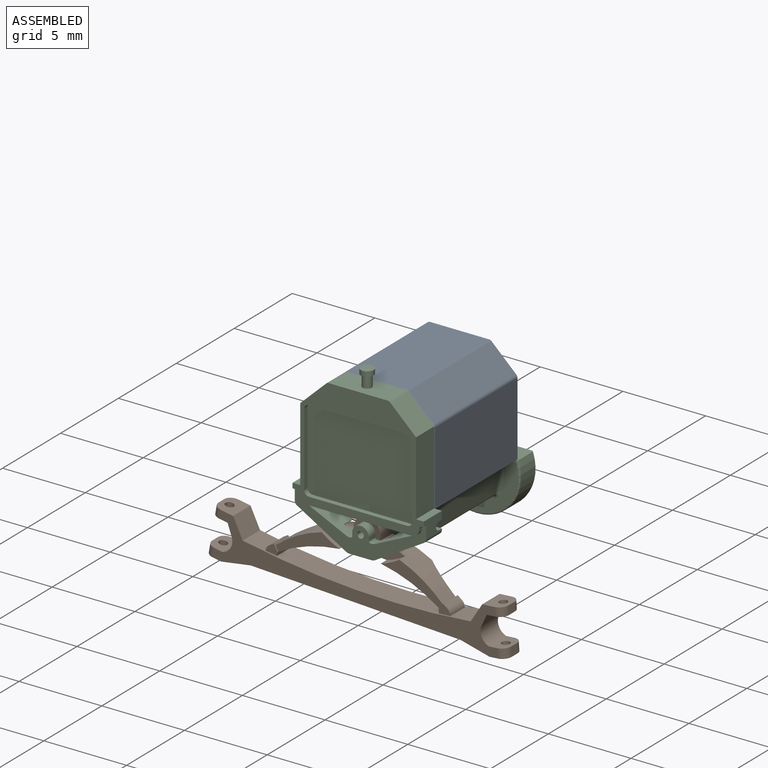
[diagram: assembled view]
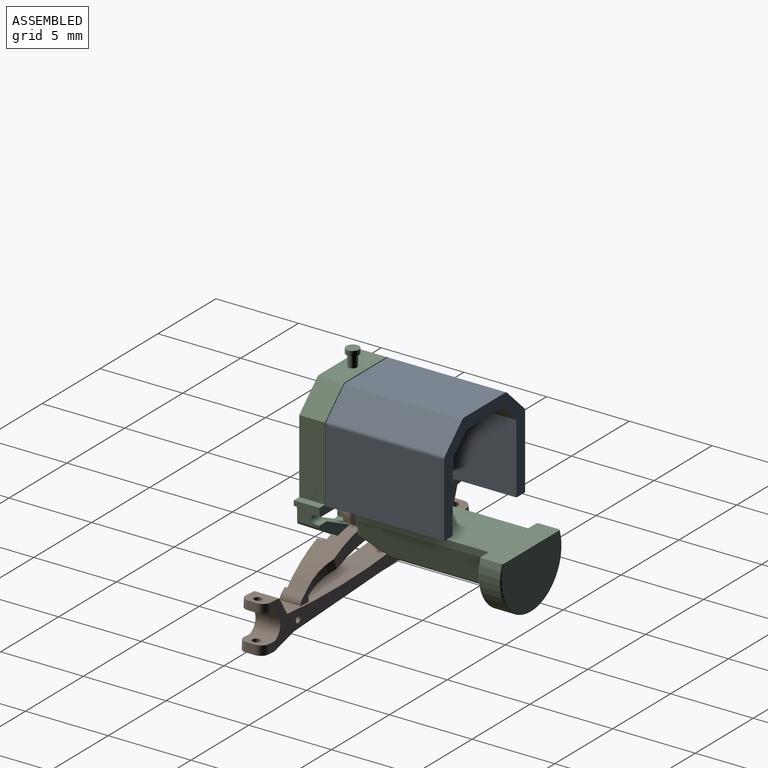
[diagram: assembled view, second angle]
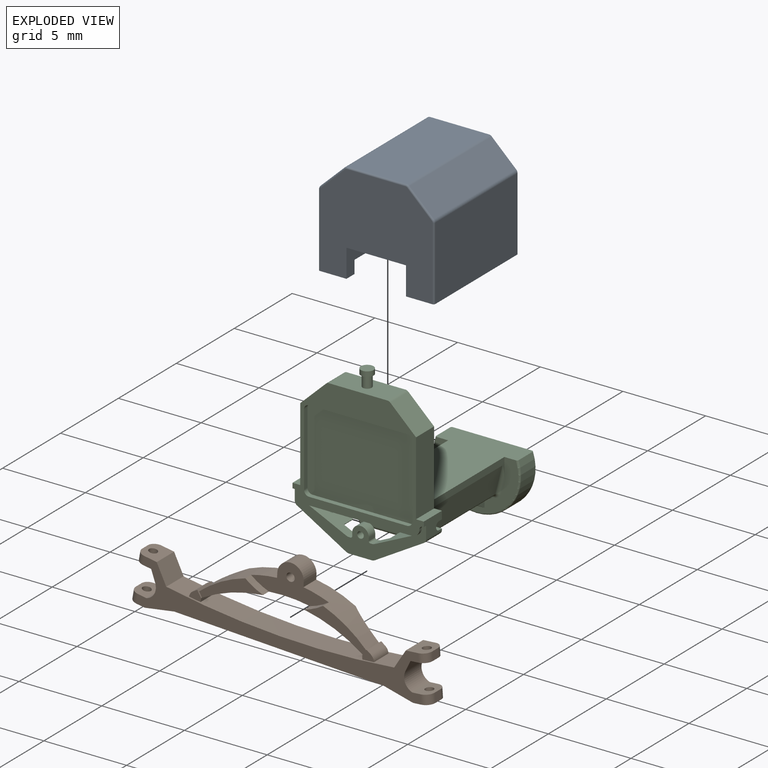
[diagram: exploded view]
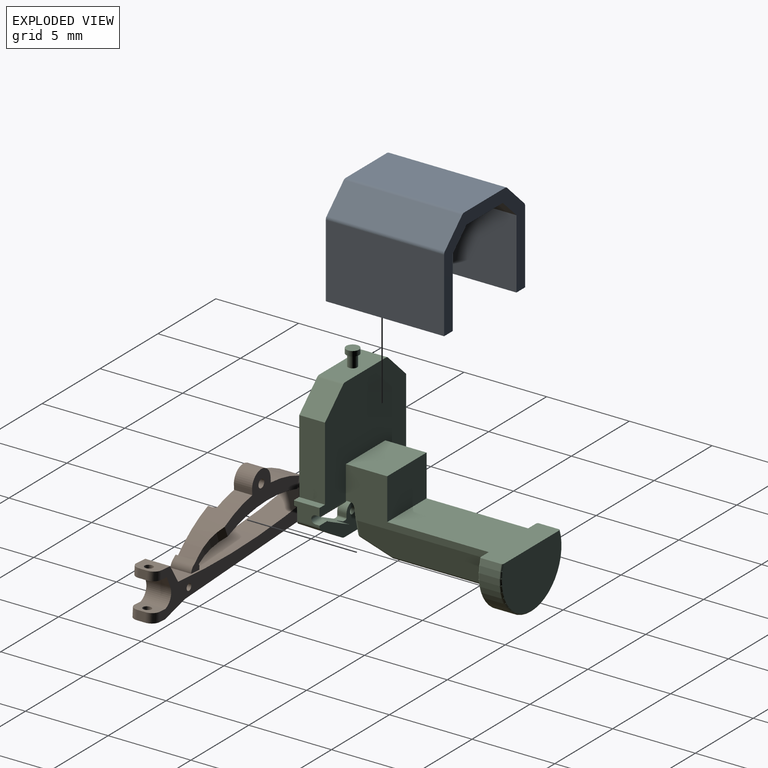
[diagram: exploded view, second angle]
ASSEMBLY  parts=3 mates=4
PART A: 31 faces, bbox 7x7.2x6.1 mm
  f0: plane 7.1x4.44mm, normal (-1,0,0), area 31.5mm2, adj f2,f17,f21,f22
  f1: plane 7.1x4.44mm, normal (1,0,0), area 31.5mm2, adj f2,f16,f18,f30
  f2: plane 7x6.1mm, normal (0,1,0), area 12.1mm2, adj f0,f1,f7,f8,f10,f11,f12,f13
  f3: plane 1.7x0.7mm, normal (1,0,0), area 1.2mm2, adj f5,f6,f9,f17
  f4: plane 1.7x0.7mm, normal (-1,0,0), area 1.2mm2, adj f5,f6,f9,f16
  f5: plane 6.8x6mm, normal (0,-1,0), area 32.3mm2, adj f3,f4,f9,f16,f17,f22,f23,f24
  f6: plane 5.5x5.35mm, normal (0,1,0), area 22mm2, adj f3,f4,f7,f8,f9,f13,f14,f15
  f7: plane 6.5x4.23mm, normal (1,0,0), area 27.5mm2, adj f2,f6,f13,f17
  f8: plane 6.5x4.23mm, normal (-1,0,0), area 27.5mm2, adj f2,f6,f15,f16
  f9: plane 3.6x0.7mm, normal (0,0,-1), area 2.5mm2, adj f3,f4,f5,f6
  f10: plane 7.1x1.48mm, normal (0.69,0,0.72), area 14.5mm2, adj f2,f18,f19,f28
  f11: plane 7.1x3.54mm, normal (0,0,1), area 25.1mm2, adj f2,f19,f20,f26
  f12: plane 7.1x1.48mm, normal (-0.69,0,0.72), area 14.5mm2, adj f2,f20,f21,f24
  f13: plane 6.5x1.18mm, normal (0.69,0,-0.72), area 10.6mm2, adj f2,f6,f7,f14
  f14: plane 6.5x3.14mm, normal (0,0,-1), area 20.4mm2, adj f2,f6,f13,f15
  f15: plane 6.5x1.18mm, normal (-0.69,0,-0.72), area 10.6mm2, adj f2,f6,f8,f14
  f16: plane 7.2x1.7mm, normal (0,0,-1), area 6.1mm2, adj f1,f2,f4,f5,f6,f8,f30
  f17: plane 7.2x1.7mm, normal (0,0,-1), area 6.1mm2, adj f0,f2,f3,f5,f6,f7,f22
  f18: cylinder r=0.25mm len=7.1mm, axis (0,-1,0), area 1.4mm2, adj f1,f2,f10,f29
  f19: cylinder r=0.25mm len=7.1mm, axis (0,1,0), area 1.3mm2, adj f2,f10,f11,f27
  f20: cylinder r=0.25mm len=7.1mm, axis (0,1,0), area 1.3mm2, adj f2,f11,f12,f25
  f21: cylinder r=0.25mm len=7.1mm, axis (0,1,0), area 1.4mm2, adj f0,f2,f12,f23
  f22: cylinder r=0.1mm len=4.44mm, axis (0,0,1), area 0.7mm2, adj f0,f5,f17,f23
  f23: torus R=0.15mm, axis (0,-1,0), area 0mm2, adj f5,f21,f22,f24
  f24: cylinder r=0.1mm len=1.55mm, axis (0.72,0,0.69), area 0.3mm2, adj f5,f12,f23,f25
  f25: torus R=0.15mm, axis (0,-1,0), area 0mm2, adj f5,f20,f24,f26
  f26: cylinder r=0.1mm len=3.54mm, axis (1,0,0), area 0.6mm2, adj f5,f11,f25,f27
  f27: torus R=0.15mm, axis (0,-1,0), area 0mm2, adj f5,f19,f26,f28
  f28: cylinder r=0.1mm len=1.55mm, axis (0.72,0,-0.69), area 0.3mm2, adj f5,f10,f27,f29
  f29: torus R=0.15mm, axis (0,-1,0), area 0mm2, adj f5,f18,f28,f30
  f30: cylinder r=0.1mm len=4.44mm, axis (0,0,-1), area 0.7mm2, adj f1,f5,f16,f29
PART B: 69 faces, bbox 18.2x1.8x4.9 mm
  f0: plane 0.45x0.31mm, normal (0,1,0), area 0.1mm2, adj f6,f46,f51,f59
  f1: plane 1.1x0.29mm, normal (1,0,0), area 0.3mm2, adj f5,f6,f56,f57
  f2: plane 1.1x0.29mm, normal (-1,0,0), area 0.3mm2, adj f3,f5,f56,f57
  f3: cylinder r=7.46mm len=4.27mm, axis (0,1,0), area 6mm2, adj f2,f4,f42,f53,f55,f56,f57,f60
  f4: plane 3.82x1.9mm, normal (0,-1,0), area 2.1mm2, adj f3,f42,f51,f55
  f5: cylinder r=0.8mm len=1.6mm, axis (0,1,0), area 2.8mm2, adj f1,f2,f56,f57
  f6: cylinder r=7.46mm len=4.27mm, axis (0,1,0), area 6mm2, adj f0,f1,f46,f52,f54,f56,f57,f59
  f7: cylinder r=47.86mm len=13.8mm, axis (0,1,0), area 19mm2, adj f10,f11,f16,f26,f40,f41,f43,f44
  f8: plane 0.51x0.5mm, normal (-0.99,0,0.12), area 0.3mm2, adj f17,f28,f30,f32
  f9: plane 0.51x0.5mm, normal (0.99,0,0.12), area 0.3mm2, adj f12,f14,f25,f35
  f10: plane 17.24x2.81mm, normal (0,-1,0), area 16.8mm2, adj f7,f14,f15,f16,f17,f19,f20,f21
  f11: plane 17.24x2.81mm, normal (0,1,0), area 16.6mm2, adj f7,f12,f13,f16,f17,f19,f20,f21
  f12: cylinder r=0.5mm len=0.57mm, axis (-0.12,0,0.99), area 0.4mm2, adj f9,f11,f25,f35
  f13: cylinder r=0.5mm len=0.61mm, axis (-0.12,0,-0.99), area 0.4mm2, adj f11,f18,f19,f33
  f14: cylinder r=0.5mm len=0.57mm, axis (0.12,0,-0.99), area 0.4mm2, adj f9,f10,f25,f35
  f15: cylinder r=0.5mm len=0.61mm, axis (0.12,0,0.99), area 0.4mm2, adj f10,f18,f19,f33
  f16: plane 1.5x1.16mm, normal (0.88,0,0.48), area 2mm2, adj f7,f10,f11,f17
  f17: plane 1.5x1.24mm, normal (0.12,0,0.99), area 1.6mm2, adj f8,f10,f11,f16,f28,f30,f62
  f18: plane 0.55x0.5mm, normal (-0.99,0,0.12), area 0.3mm2, adj f13,f15,f19,f33
  f19: plane 1.5x0.99mm, normal (-0.12,0,-0.99), area 1.2mm2, adj f10,f11,f13,f15,f18,f20,f61
  f20: plane 1.78x1.5mm, normal (0.2,0,-0.98), area 2.7mm2, adj f10,f11,f19,f21
  f21: plane 12.7x1.5mm, normal (0,0,-1), area 19mm2, adj f10,f11,f20,f22
  f22: plane 1.78x1.5mm, normal (-0.2,0,-0.98), area 2.7mm2, adj f10,f11,f21,f23
  f23: plane 1.5x0.99mm, normal (0.12,0,-0.99), area 1.2mm2, adj f10,f11,f22,f24,f27,f29,f63
  f24: plane 0.55x0.5mm, normal (0.99,0,0.12), area 0.3mm2, adj f23,f27,f29,f36
  f25: plane 1.5x1.24mm, normal (-0.12,0,0.99), area 1.6mm2, adj f9,f10,f11,f12,f14,f26,f64
  f26: plane 1.5x1.16mm, normal (-0.88,0,0.48), area 2mm2, adj f7,f10,f11,f25
  f27: cylinder r=0.5mm len=0.61mm, axis (-0.12,0,0.99), area 0.4mm2, adj f11,f23,f24,f36
  f28: cylinder r=0.5mm len=0.57mm, axis (-0.12,0,-0.99), area 0.4mm2, adj f8,f11,f17,f32
  f29: cylinder r=0.5mm len=0.61mm, axis (0.12,0,-0.99), area 0.4mm2, adj f10,f23,f24,f36
  f30: cylinder r=0.5mm len=0.57mm, axis (0.12,0,0.99), area 0.4mm2, adj f8,f10,f17,f32
  f31: plane 1.5x0.68mm, normal (-0.93,0,-0.38), area 1.1mm2, adj f10,f11,f32,f37
  f32: plane 1.5x0.99mm, normal (-0.12,0,-0.99), area 1.2mm2, adj f8,f10,f11,f28,f30,f31,f62
  f33: plane 1.5x0.99mm, normal (0.12,0,0.99), area 1.2mm2, adj f10,f11,f13,f15,f18,f37,f61
  f34: plane 1.5x0.68mm, normal (0.93,0,-0.38), area 1.1mm2, adj f10,f11,f35,f38
  f35: plane 1.5x0.99mm, normal (0.12,0,-0.99), area 1.2mm2, adj f9,f10,f11,f12,f14,f34,f64
  f36: plane 1.5x0.99mm, normal (-0.12,0,0.99), area 1.2mm2, adj f10,f11,f24,f27,f29,f38,f63
  f37: cylinder r=0.75mm len=1.5mm, axis (0,-1,0), area 1.9mm2, adj f10,f11,f31,f33
  f38: cylinder r=0.75mm len=1.5mm, axis (0,-1,0), area 1.9mm2, adj f10,f11,f34,f36
  f39: plane 1.25x0.25mm, normal (-0.55,0,0.83), area 0.4mm2, adj f40,f42,f43,f44
  f40: cylinder r=0.5mm len=1.25mm, axis (0,1,0), area 0.5mm2, adj f7,f39,f43,f44
  f41: plane 1.25x0.22mm, normal (0.99,0,-0.11), area 0.3mm2, adj f7,f42,f43,f44,f51
  f42: plane 1.25x0.38mm, normal (0.83,0,0.55), area 0.2mm2, adj f3,f4,f39,f41,f43,f44,f53
  f43: plane 0.72x0.6mm, normal (0,-1,0), area 0.3mm2, adj f7,f39,f40,f41,f42
  f44: plane 0.72x0.6mm, normal (0,1,0), area 0.3mm2, adj f7,f39,f40,f41,f42
  f45: plane 1.25x0.25mm, normal (0.55,0,0.83), area 0.4mm2, adj f46,f48,f49,f50
  f46: plane 1.25x0.38mm, normal (-0.83,0,0.55), area 0.2mm2, adj f0,f6,f45,f47,f49,f50,f52
  f47: plane 1.25x0.22mm, normal (-0.99,0,-0.11), area 0.3mm2, adj f7,f46,f49,f50,f51
  f48: cylinder r=0.5mm len=1.25mm, axis (0,1,0), area 0.5mm2, adj f7,f45,f49,f50
  f49: plane 0.72x0.6mm, normal (0,-1,0), area 0.3mm2, adj f7,f45,f46,f47,f48
  f50: plane 0.72x0.6mm, normal (0,1,0), area 0.3mm2, adj f7,f45,f46,f47,f48
  f51: cylinder r=9.12mm len=9.75mm, axis (0,1,0), area 13.8mm2, adj f0,f4,f41,f47,f52,f53,f54,f55
  f52: plane 3.82x1.9mm, normal (0,-1,0), area 2.1mm2, adj f6,f46,f51,f54
  f53: plane 0.45x0.31mm, normal (0,1,0), area 0.1mm2, adj f3,f42,f51,f60
  f54: cylinder r=4mm len=1.11mm, axis (0,-1,0), area 0.6mm2, adj f6,f51,f52,f56
  f55: cylinder r=4mm len=1.11mm, axis (0,-1,0), area 0.6mm2, adj f3,f4,f51,f56
  f56: plane 4.71x2mm, normal (0,-1,0), area 4.4mm2, adj f1,f2,f3,f5,f6,f51,f54,f55
  f57: plane 6.45x2.42mm, normal (0,1,0), area 6.4mm2, adj f1,f2,f3,f5,f6,f51,f58,f59
  f58: cylinder r=0.25mm len=1.1mm, axis (0,-1,0), area 1.7mm2, adj f56,f57
  f59: cylinder r=4mm len=2.12mm, axis (-0.33,0,-0.94), area 1.1mm2, adj f0,f6,f51,f57
  f60: cylinder r=4mm len=2.12mm, axis (0.33,0,-0.94), area 1.1mm2, adj f3,f51,f53,f57
  f61: cylinder r=0.25mm len=0.61mm, axis (0.12,0,0.99), area 0.9mm2, adj f19,f33
  f62: cylinder r=0.25mm len=0.57mm, axis (0.12,0,0.99), area 0.8mm2, adj f17,f32
  f63: cylinder r=0.25mm len=0.61mm, axis (-0.12,0,0.99), area 0.9mm2, adj f23,f36
  f64: cylinder r=0.25mm len=0.57mm, axis (-0.12,0,0.99), area 0.8mm2, adj f25,f35
  f65: cylinder r=0.2mm len=1mm, axis (0,1,0), area 1.3mm2, adj f11,f66
  f66: plane 0.4x0.4mm, normal (0,1,0), area 0.1mm2, adj f65
  f67: cylinder r=0.2mm len=1mm, axis (0,1,0), area 1.3mm2, adj f11,f68
  f68: plane 0.4x0.4mm, normal (0,1,0), area 0.1mm2, adj f67
PART C: 115 faces, bbox 8x11.6x11.8 mm
  f0: plane 5.1x3.45mm, normal (0,-1,0), area 6.2mm2, adj f6,f7,f62,f81,f83,f84,f85,f94
  f1: plane 7.94x6.5mm, normal (0,1,0), area 36.6mm2, adj f3,f4,f6,f7,f10,f24,f25,f27
  f2: plane 2.57x1.14mm, normal (0,1,0), area 1.2mm2, adj f4,f12,f47,f52,f54,f68,f72,f107
  f3: plane 1.56x1.06mm, normal (1,0,0), area 1.3mm2, adj f1,f11,f20,f26,f45,f50,f69,f71
  f4: plane 1.56x1.06mm, normal (-1,0,0), area 1.3mm2, adj f1,f2,f19,f26,f46,f50,f69,f70
  f5: plane 6.5x0.99mm, normal (0,0,-1), area 6mm2, adj f8,f22,f26,f56,f57,f75,f77
  f6: plane 8.65x3.74mm, normal (-1,0,0), area 9.3mm2, adj f0,f1,f10,f58,f62,f63,f69,f74
  f7: plane 8.65x3.74mm, normal (1,0,0), area 9.3mm2, adj f0,f1,f10,f59,f62,f63,f69,f74
  f8: cylinder r=0.45mm len=0.99mm, axis (0,-1,0), area 0.2mm2, adj f5,f21,f26,f50,f68,f78
  f9: plane 2.41x1.36mm, normal (-0.42,0,0.91), area 3.1mm2, adj f11,f50,f53,f55,f67,f111
  f10: plane 3.4x2.5mm, normal (0,0,1), area 8.5mm2, adj f1,f6,f7,f63
  f11: plane 2.57x1.14mm, normal (0,1,0), area 1.2mm2, adj f3,f9,f49,f51,f55,f67,f73,f108
  f12: plane 2.41x1.36mm, normal (0.42,0,0.91), area 3.1mm2, adj f2,f50,f53,f54,f68,f112
  f13: cylinder r=0.5mm len=1mm, axis (0,-1,0), area 0.9mm2, adj f17,f18,f50,f53
  f14: cylinder r=0.2mm len=0.56mm, axis (0,-1,0), area 0.7mm2, adj f50,f53
  f15: plane 0.56x0.09mm, normal (0,0,1), area 0.1mm2, adj f50,f53,f112,f114
  f16: plane 0.56x0.09mm, normal (0,0,1), area 0.1mm2, adj f50,f53,f111,f113
  f17: plane 0.56x0.2mm, normal (-1,0,0), area 0.1mm2, adj f13,f50,f53,f114
  f18: plane 0.56x0.2mm, normal (1,0,0), area 0.1mm2, adj f13,f50,f53,f113
  f19: plane 0.2x0.05mm, normal (0,0,-1), area 0mm2, adj f4,f21,f26,f50
  f20: plane 0.2x0.05mm, normal (0,0,-1), area 0mm2, adj f3,f23,f26,f50
  f21: cylinder r=0.22mm len=0.22mm, axis (0,-1,0), area 0.1mm2, adj f8,f19,f26,f50
  f22: cylinder r=0.45mm len=0.99mm, axis (0,-1,0), area 0.2mm2, adj f5,f23,f26,f50,f67,f76
  f23: cylinder r=0.22mm len=0.22mm, axis (0,-1,0), area 0.1mm2, adj f20,f22,f26,f50
  f24: plane 4.48x1.56mm, normal (-1,0,0), area 7mm2, adj f1,f26,f29,f46
  f25: plane 4.48x1.56mm, normal (1,0,0), area 7mm2, adj f1,f26,f27,f45
  f26: plane 7.94x7mm, normal (0,-1,0), area 14.3mm2, adj f3,f4,f5,f8,f19,f20,f21,f22
  f27: plane 1.56x1.56mm, normal (0.69,0,0.72), area 3.4mm2, adj f1,f25,f26,f43
  f28: plane 3.54x1.56mm, normal (0,0,1), area 5.3mm2, adj f1,f26,f39,f43,f44
  f29: plane 1.56x1.56mm, normal (-0.69,0,0.72), area 3.4mm2, adj f1,f24,f26,f44
  f30: plane 5.94x0.3mm, normal (0,0,-1), area 1.8mm2, adj f26,f34,f35,f38
  f31: plane 4.4x0.3mm, normal (1,0,0), area 1.3mm2, adj f26,f34,f35,f36
  f32: plane 5.94x0.3mm, normal (0,0,1), area 1.8mm2, adj f26,f34,f36,f37
  f33: plane 4.4x0.3mm, normal (-1,0,0), area 1.3mm2, adj f26,f34,f37,f38
  f34: plane 6.54x5mm, normal (0,-1,0), area 32.6mm2, adj f30,f31,f32,f33,f35,f36,f37,f38
  f35: cylinder r=0.3mm len=0.3mm, axis (0,-1,0), area 0.1mm2, adj f26,f30,f31,f34
  f36: cylinder r=0.3mm len=0.3mm, axis (0,1,0), area 0.1mm2, adj f26,f31,f32,f34
  f37: cylinder r=0.3mm len=0.3mm, axis (0,-1,0), area 0.1mm2, adj f26,f32,f33,f34
  f38: cylinder r=0.3mm len=0.3mm, axis (0,1,0), area 0.1mm2, adj f26,f30,f33,f34
  f39: cylinder r=0.28mm len=0.7mm, axis (0,0,-1), area 1.2mm2, adj f28,f42
  f40: cylinder r=0.39mm len=0.78mm, axis (0,0,-1), area 0.7mm2, adj f41,f42
  f41: plane 0.78x0.78mm, normal (0,0,1), area 0.5mm2, adj f40
  f42: plane 0.78x0.78mm, normal (0,0,-1), area 0.2mm2, adj f39,f40
  f43: cylinder r=0.25mm len=1.56mm, axis (0,1,0), area 0.3mm2, adj f1,f26,f27,f28
  f44: cylinder r=0.25mm len=1.56mm, axis (0,1,0), area 0.3mm2, adj f1,f26,f28,f29
  f45: plane 1.56x0.47mm, normal (0,0,1), area 0.7mm2, adj f1,f3,f25,f26
  f46: plane 1.56x0.47mm, normal (0,0,1), area 0.7mm2, adj f1,f4,f24,f26
  f47: plane 2.97x1.74mm, normal (-0.51,0,-0.86), area 3.3mm2, adj f2,f50,f52,f53,f107,f109
  f48: plane 1.34x0.56mm, normal (0,0,-1), area 0.8mm2, adj f50,f53,f109,f110
  f49: plane 2.97x1.74mm, normal (0.51,0,-0.86), area 3.3mm2, adj f11,f50,f51,f53,f108,f110
  f50: plane 7.94x2.77mm, normal (0,-1,0), area 6.7mm2, adj f3,f4,f8,f9,f12,f13,f14,f15
  f51: cylinder r=10mm len=1.01mm, axis (0,1,0), area 0.8mm2, adj f11,f49,f53,f55
  f52: cylinder r=10mm len=1.01mm, axis (0,1,0), area 0.8mm2, adj f2,f47,f53,f54
  f53: plane 4.82x1.7mm, normal (0,1,0), area 3.9mm2, adj f9,f12,f13,f14,f15,f16,f17,f18
  f54: cylinder r=1.4mm len=0.8mm, axis (0,1,0), area 0mm2, adj f2,f12,f52,f53
  f55: cylinder r=1.4mm len=0.8mm, axis (0,1,0), area 0mm2, adj f9,f11,f51,f53
  f56: plane 2.14x0.5mm, normal (0,1,0), area 0.7mm2, adj f5,f57
  f57: cylinder r=1.4mm len=2.14mm, axis (0,1,0), area 1mm2, adj f5,f56,f70,f71,f75,f77
  f58: plane 7.74x1.65mm, normal (-0.97,0,-0.24), area 12.5mm2, adj f6,f90,f92,f94,f95
  f59: plane 7.74x1.65mm, normal (0.97,0,-0.24), area 12.5mm2, adj f7,f99,f101,f103,f104
  f60: plane 5.9x2.19mm, normal (0,0,-1), area 11.6mm2, adj f81,f83,f84,f88,f95,f97,f103,f106
  f61: plane 3.31x1.51mm, normal (0,-1,0), area 4.3mm2, adj f64,f74,f87,f90,f99
  f62: plane 7.56x5mm, normal (0,0,1), area 27.8mm2, adj f0,f6,f7,f63,f79,f80,f85,f86
  f63: plane 3.4x2.5mm, normal (0,1,0), area 8.5mm2, adj f6,f7,f10,f62
  f64: cylinder r=0.2mm len=5mm, axis (0,-1,0), area 6.3mm2, adj f61,f65
  f65: plane 0.4x0.4mm, normal (0,-1,0), area 0.1mm2, adj f64
  f66: plane 2.56x1.84mm, normal (0,-0.37,-0.93), area 4.7mm2, adj f87,f88,f92,f101
  f67: plane 1.37x0.19mm, normal (-1,0,0), area 0.1mm2, adj f9,f11,f22,f50,f71,f73,f76
  f68: plane 1.37x0.19mm, normal (1,0,0), area 0.1mm2, adj f2,f8,f12,f50,f70,f72,f78
  f69: plane 7.94x0.5mm, normal (0,0,-1), area 2.8mm2, adj f1,f3,f4,f6,f7,f70,f71,f74
  f70: cylinder r=0.25mm len=3.97mm, axis (1,0,0), area 1.9mm2, adj f4,f57,f68,f69,f72,f77,f78
  f71: cylinder r=0.25mm len=3.97mm, axis (1,0,0), area 1.9mm2, adj f3,f57,f67,f69,f73,f75,f76
  f72: plane 0.7x0.25mm, normal (0,0,1), area 0.2mm2, adj f2,f4,f68,f70
  f73: plane 0.7x0.25mm, normal (0,0,1), area 0.2mm2, adj f3,f11,f67,f71
  f74: cylinder r=0.25mm len=3.4mm, axis (1,0,0), area 1.3mm2, adj f6,f7,f61,f69,f89,f98
  f75: cylinder r=0.1mm len=2.32mm, axis (1,0,0), area 0.5mm2, adj f5,f57,f71,f76
  f76: bspline ~0.22x0.16mm, area 0mm2, adj f22,f67,f71,f75
  f77: cylinder r=0.1mm len=2.32mm, axis (1,0,0), area 0.5mm2, adj f5,f57,f70,f78
  f78: bspline ~0.22x0.16mm, area 0mm2, adj f8,f68,f70,f77
  f79: cylinder r=2.65mm len=5.3mm, axis (0,-1,0), area 12.2mm2, adj f62,f85,f86
  f80: plane 5.1x3.45mm, normal (0,1,0), area 14.7mm2, adj f62,f86
  f81: plane 1.5x1mm, normal (0,-0.51,-0.86), area 1.7mm2, adj f0,f60,f83,f84
  f82: cylinder r=0.2mm len=1mm, axis (-1,0,0), area 1.3mm2, adj f83,f84
  f83: plane 1.5x0.9mm, normal (1,0,0), area 0.5mm2, adj f0,f60,f81,f82,f106
  f84: plane 1.5x0.9mm, normal (-1,0,0), area 0.5mm2, adj f0,f60,f81,f82,f97
  f85: torus R=2.55mm, axis (0,-1,0), area 1.6mm2, adj f0,f62,f79
  f86: torus R=2.55mm, axis (0,-1,0), area 1.6mm2, adj f62,f79,f80
  f87: cylinder r=0.2mm len=2.56mm, axis (1,0,0), area 0.6mm2, adj f61,f66,f91,f100
  f88: cylinder r=0.2mm len=2.19mm, axis (-1,0,0), area 0.2mm2, adj f60,f66,f93,f102
  f89: bspline ~0.26x0.26mm, area 0mm2, adj f6,f74,f90
  f90: cylinder r=0.2mm len=1.56mm, axis (-0.24,0,0.97), area 0.4mm2, adj f6,f58,f61,f89,f91
  f91: sphere r=0.2mm, area 0mm2, adj f87,f90,f92
  f92: cylinder r=0.2mm len=1.91mm, axis (-0.09,-0.92,0.37), area 0.5mm2, adj f58,f66,f91,f93
  f93: sphere r=0.2mm, area 0mm2, adj f88,f92,f95
  f94: cylinder r=0.2mm len=1.7mm, axis (0.24,0,-0.97), area 0.4mm2, adj f0,f6,f58,f96
  f95: cylinder r=0.2mm len=5.9mm, axis (0,-1,0), area 1.6mm2, adj f58,f60,f93,f96
  f96: torus R=0.4mm, axis (0,-1,0), area 0.1mm2, adj f0,f94,f95,f97
  f97: cylinder r=0.2mm len=0.59mm, axis (1,0,0), area 0.2mm2, adj f0,f60,f84,f96
  f98: bspline ~0.26x0.26mm, area 0mm2, adj f7,f74,f99
  f99: cylinder r=0.2mm len=1.56mm, axis (-0.24,0,-0.97), area 0.4mm2, adj f7,f59,f61,f98,f100
  f100: sphere r=0.2mm, area 0mm2, adj f87,f99,f101
  f101: cylinder r=0.2mm len=1.91mm, axis (-0.09,0.92,-0.37), area 0.5mm2, adj f59,f66,f100,f102
  f102: sphere r=0.2mm, area 0mm2, adj f88,f101,f103
  f103: cylinder r=0.2mm len=5.9mm, axis (0,-1,0), area 1.6mm2, adj f59,f60,f102,f105
  f104: cylinder r=0.2mm len=1.7mm, axis (0.24,0,0.97), area 0.4mm2, adj f0,f7,f59,f105
  f105: torus R=0.4mm, axis (0,-1,0), area 0.1mm2, adj f0,f103,f104,f106
  f106: cylinder r=0.2mm len=0.59mm, axis (1,0,0), area 0.2mm2, adj f0,f60,f83,f105
  f107: cylinder r=0.25mm len=1.36mm, axis (0,-1,0), area 0.4mm2, adj f2,f4,f47,f50
  f108: cylinder r=0.25mm len=1.36mm, axis (0,1,0), area 0.4mm2, adj f3,f11,f49,f50
  f109: cylinder r=0.4mm len=0.56mm, axis (0,-1,0), area 0.1mm2, adj f47,f48,f50,f53
  f110: cylinder r=0.4mm len=0.56mm, axis (0,-1,0), area 0.1mm2, adj f48,f49,f50,f53
  f111: cylinder r=0.4mm len=0.56mm, axis (0,1,0), area 0.1mm2, adj f9,f16,f50,f53
  f112: cylinder r=0.4mm len=0.56mm, axis (0,1,0), area 0.1mm2, adj f12,f15,f50,f53
  f113: cylinder r=0.1mm len=0.56mm, axis (0,1,0), area 0.1mm2, adj f16,f18,f50,f53
  f114: cylinder r=0.1mm len=0.56mm, axis (0,-1,0), area 0.1mm2, adj f15,f17,f50,f53
PLACE A t=(0,8.76,-4.98)mm
PLACE B rot(axis=(0,1,0),3deg) t=(-0.13,0.81,-7.48)mm
PLACE C t=(0,1.56,-4.98)mm
MATE planar A.f11 <-> C.f39  axis (0,0,1) through (0,5.21,2.92)mm
MATE revolute B.f5 <-> C.f14  axis (0,-1,0) through (0,0.76,-4.98)mm
MATE planar C.f24 <-> A.f0  axis (-1,0,0) through (-3.5,0.78,-0.87)mm
MATE planar C.f1 <-> A.f5  axis (0,1,0) through (0,1.56,-0.14)mm
